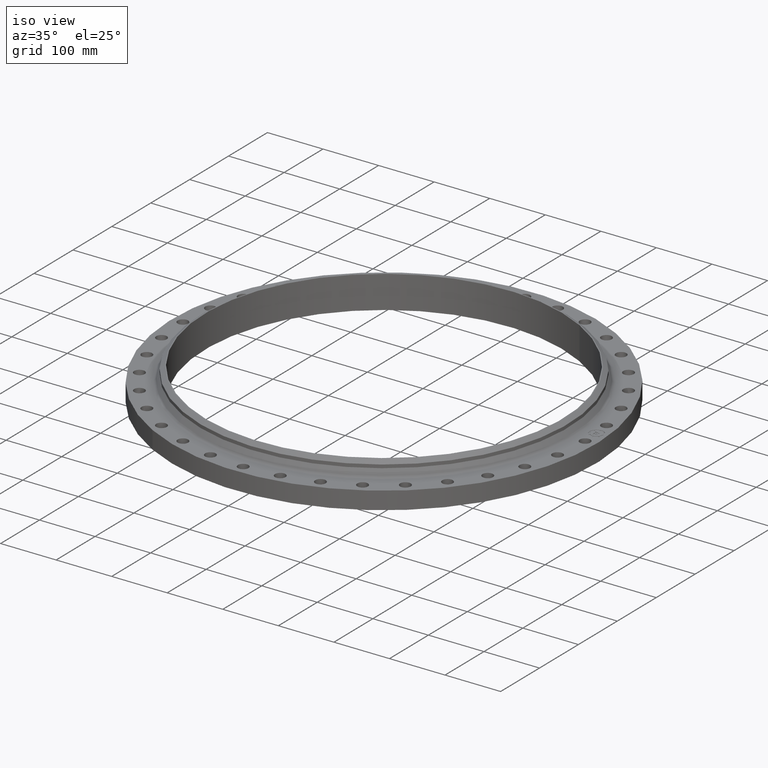
[diagram: clean part render]
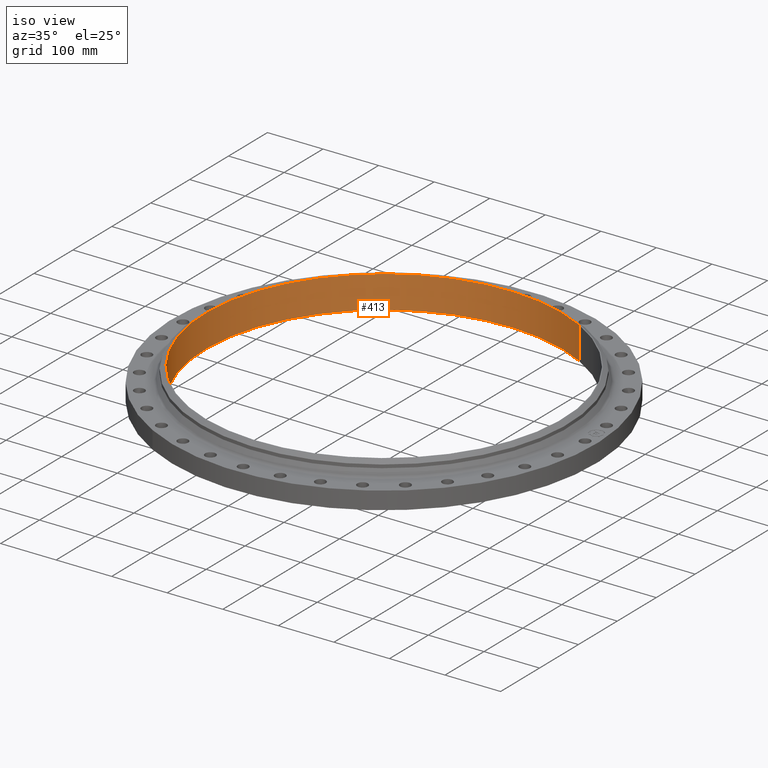
[diagram: same view with one face highlighted and labeled with its STEP entity id]
A machine part, iso view. The second image highlights one B-rep face of the part: STEP entity #413.
In plain terms, the highlighted cylindrical surface (partial cylindrical patch) has radius 321.437 mm, axis along (0, 0, -1).
Its self-contained STEP definition (entity closure, byte-faithful):
#354=AXIS2_PLACEMENT_3D('Circle Axis2P3D',#352,#353,$) ;
#374=AXIS2_PLACEMENT_3D('Cylinder Axis2P3D',#371,#372,#373) ;
#404=AXIS2_PLACEMENT_3D('Circle Axis2P3D',#402,#403,$) ;
#352=CARTESIAN_POINT('Axis2P3D Location',(3.35689481461E-015,2.79741234551E-016,2.25000000001)) ;
#356=CARTESIAN_POINT('Vertex',(-6.06713019106,-11.1058073208,2.25000000001)) ;
#358=CARTESIAN_POINT('Vertex',(6.06713019106,11.1058073208,2.25000000001)) ;
#371=CARTESIAN_POINT('Axis2P3D Location',(0.,0.,1.1435)) ;
#376=CARTESIAN_POINT('Line Origine',(6.06713019106,11.1058073208,1.0935)) ;
#380=CARTESIAN_POINT('Vertex',(6.06713019106,11.1058073208,-0.0630000000003)) ;
#387=CARTESIAN_POINT('Vertex',(-6.06713019106,-11.1058073208,-0.0630000000003)) ;
#390=CARTESIAN_POINT('Line Origine',(-6.06713019106,-11.1058073208,1.0935)) ;
#402=CARTESIAN_POINT('Axis2P3D Location',(0.,0.,-0.0630000000003)) ;
#353=DIRECTION('Axis2P3D Direction',(0.,-0.,-0.0393700787402)) ;
#372=DIRECTION('Axis2P3D Direction',(0.,0.,-0.0393700787402)) ;
#373=DIRECTION('Axis2P3D XDirection',(-0.0188750212049,-0.0345504945626,0.)) ;
#377=DIRECTION('Vector Direction',(0.,0.,-0.0393700787402)) ;
#391=DIRECTION('Vector Direction',(0.,0.,-0.0393700787402)) ;
#403=DIRECTION('Axis2P3D Direction',(0.,0.,-0.0393700787402)) ;
#378=VECTOR('Line Direction',#377,0.0393700787402) ;
#392=VECTOR('Line Direction',#391,0.0393700787402) ;
#408=ORIENTED_EDGE('',*,*,#394,.T.) ;
#409=ORIENTED_EDGE('',*,*,#406,.T.) ;
#410=ORIENTED_EDGE('',*,*,#382,.F.) ;
#411=ORIENTED_EDGE('',*,*,#360,.F.) ;
#413=ADVANCED_FACE('PartBody',(#412),#375,.F.) ;
#355=CIRCLE('generated circle',#354,12.6550000001) ;
#405=CIRCLE('generated circle',#404,12.6550000001) ;
#375=CYLINDRICAL_SURFACE('generated cylinder',#374,12.6550000001) ;
#360=EDGE_CURVE('',#357,#359,#355,.T.) ;
#382=EDGE_CURVE('',#359,#381,#379,.T.) ;
#394=EDGE_CURVE('',#357,#388,#393,.T.) ;
#406=EDGE_CURVE('',#388,#381,#405,.T.) ;
#407=EDGE_LOOP('',(#408,#409,#410,#411)) ;
#412=FACE_OUTER_BOUND('',#407,.T.) ;
#379=LINE('Line',#376,#378) ;
#393=LINE('Line',#390,#392) ;
#357=VERTEX_POINT('',#356) ;
#359=VERTEX_POINT('',#358) ;
#381=VERTEX_POINT('',#380) ;
#388=VERTEX_POINT('',#387) ;